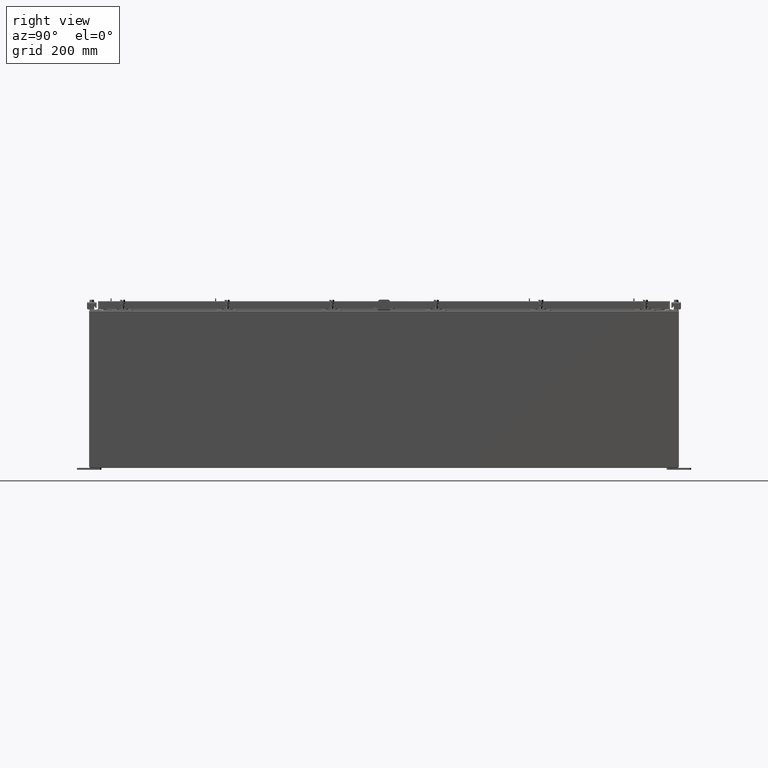
[diagram: clean part render]
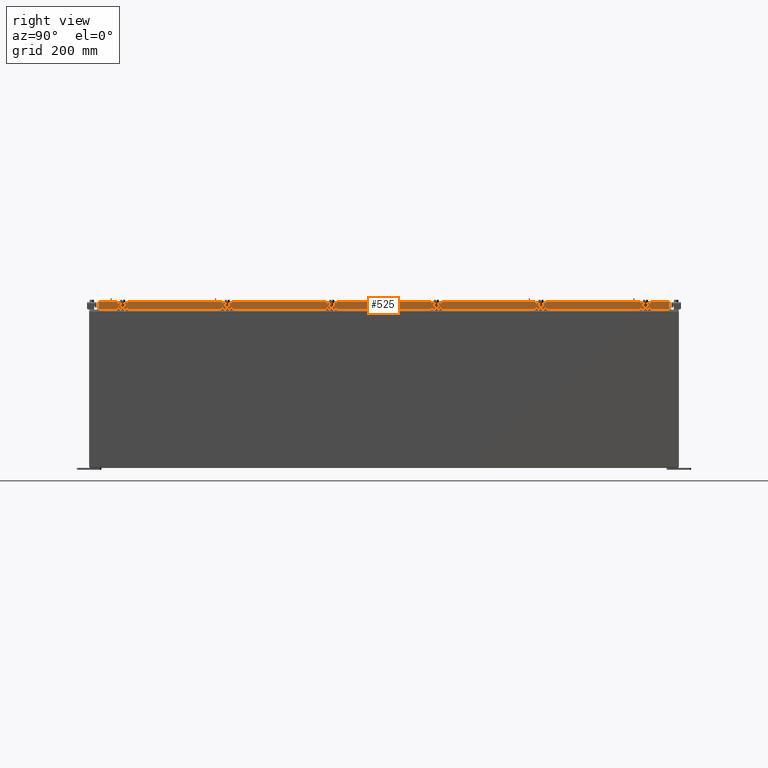
[diagram: same view with one face highlighted and labeled with its STEP entity id]
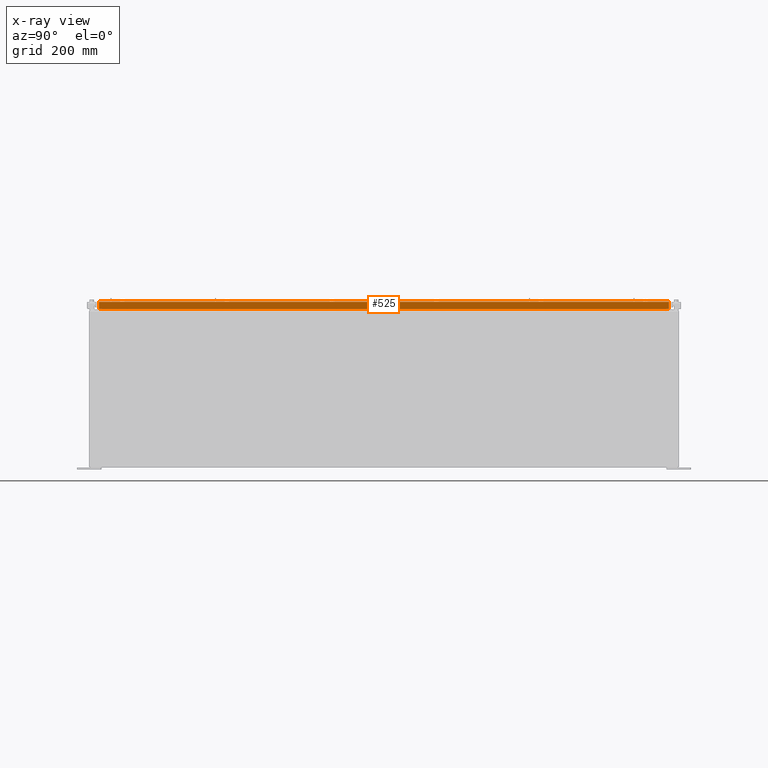
[diagram: x-ray of the same camera — body ghosted, the highlighted face saturated]
A machine part, right view. The second image highlights one B-rep face of the part: STEP entity #525.
The next image is the same camera in x-ray: the body ghosted, the highlighted face saturated — about 0% of this face is hidden behind the body in this view.
In plain terms, the highlighted planar face has unit normal (1, 0, 0).
Its self-contained STEP definition (entity closure, byte-faithful):
#495 = CARTESIAN_POINT ( 'NONE',  ( 17.07800000000000700, 29.00515786437627200, -0.8499999999999996400 ) ) ;
#525 = ADVANCED_FACE ( 'NONE', ( #14808 ), #6521, .T. ) ;
#589 = CARTESIAN_POINT ( 'NONE',  ( 17.07800000000000300, 0.0000000000000000000, -0.08770000000000007000 ) ) ;
#693 = LINE ( 'NONE', #14631, #5012 ) ;
#1278 = VECTOR ( 'NONE', #24574, 39.37007874015748100 ) ;
#3966 = CARTESIAN_POINT ( 'NONE',  ( 17.07800000000000300, -29.00515786437627200, -0.08770000000000007000 ) ) ;
#4329 = EDGE_CURVE ( 'NONE', #9694, #26082, #13972, .T. ) ;
#4550 = EDGE_CURVE ( 'NONE', #13369, #9694, #24896, .T. ) ;
#4651 = CARTESIAN_POINT ( 'NONE',  ( 17.07800000000000300, 29.00515786437626500, -0.08770000000000007000 ) ) ;
#4770 = CARTESIAN_POINT ( 'NONE',  ( 17.07800000000000700, -29.00515786437626500, -0.8499999999999996400 ) ) ;
#5012 = VECTOR ( 'NONE', #27350, 39.37007874015748100 ) ;
#6139 = EDGE_CURVE ( 'NONE', #26082, #25011, #20227, .T. ) ;
#6521 = PLANE ( 'NONE',  #23681 ) ;
#6555 = ORIENTED_EDGE ( 'NONE', *, *, #13916, .T. ) ;
#7369 = EDGE_CURVE ( 'NONE', #8189, #18867, #15759, .T. ) ;
#7421 = CARTESIAN_POINT ( 'NONE',  ( 17.07799999999998500, 28.25515786437626500, -0.8500000000000016400 ) ) ;
#8189 = VERTEX_POINT ( 'NONE', #495 ) ;
#9381 = CARTESIAN_POINT ( 'NONE',  ( 17.07799999999998500, -28.25515786437626500, -0.8500000000000016400 ) ) ;
#9639 = CARTESIAN_POINT ( 'NONE',  ( 17.07800000000000700, -29.09400000000000500, -0.8499999999999996400 ) ) ;
#9694 = VERTEX_POINT ( 'NONE', #9381 ) ;
#9799 = EDGE_CURVE ( 'NONE', #8189, #13369, #693, .T. ) ;
#9968 = ORIENTED_EDGE ( 'NONE', *, *, #4329, .F. ) ;
#10810 = DIRECTION ( 'NONE',  ( 2.818880942772360100E-015, 0.0000000000000000000, -1.000000000000000000 ) ) ;
#11140 = DIRECTION ( 'NONE',  ( -2.818880942772360100E-015, -6.982962677686265900E-015, 1.000000000000000000 ) ) ;
#11241 = DIRECTION ( 'NONE',  ( 0.0000000000000000000, -1.000000000000000000, 0.0000000000000000000 ) ) ;
#12567 = DIRECTION ( 'NONE',  ( -2.818880942772360100E-015, -6.982962677686265900E-015, 1.000000000000000000 ) ) ;
#13281 = CARTESIAN_POINT ( 'NONE',  ( 17.07800000000000300, -29.00515786437627200, -0.07469999999999978000 ) ) ;
#13369 = VERTEX_POINT ( 'NONE', #7421 ) ;
#13517 = LINE ( 'NONE', #589, #19154 ) ;
#13916 = EDGE_CURVE ( 'NONE', #18867, #25011, #13517, .T. ) ;
#13972 = LINE ( 'NONE', #9639, #1278 ) ;
#14631 = CARTESIAN_POINT ( 'NONE',  ( 17.07800000000000700, -29.09400000000000500, -0.8499999999999996400 ) ) ;
#14808 = FACE_OUTER_BOUND ( 'NONE', #21024, .T. ) ;
#14992 = CARTESIAN_POINT ( 'NONE',  ( 17.07800000000000300, 0.0000000000000000000, 4.840166239667796000E-014 ) ) ;
#15696 = ORIENTED_EDGE ( 'NONE', *, *, #6139, .F. ) ;
#15759 = LINE ( 'NONE', #16815, #20751 ) ;
#16672 = CARTESIAN_POINT ( 'NONE',  ( 17.07799999999998500, 28.25515786437626500, -0.8500000000000016400 ) ) ;
#16815 = CARTESIAN_POINT ( 'NONE',  ( 17.07800000000000300, 29.00515786437626500, 2.509435972240157400E-013 ) ) ;
#17304 = ORIENTED_EDGE ( 'NONE', *, *, #7369, .T. ) ;
#18867 = VERTEX_POINT ( 'NONE', #4651 ) ;
#19154 = VECTOR ( 'NONE', #11241, 39.37007874015748100 ) ;
#20227 = LINE ( 'NONE', #13281, #25204 ) ;
#20700 = ORIENTED_EDGE ( 'NONE', *, *, #4550, .F. ) ;
#20751 = VECTOR ( 'NONE', #12567, 39.37007874015748100 ) ;
#21024 = EDGE_LOOP ( 'NONE', ( #15696, #9968, #20700, #22788, #17304, #6555 ) ) ;
#21395 = DIRECTION ( 'NONE',  ( 1.000000000000000000, 0.0000000000000000000, 2.818880942772360100E-015 ) ) ;
#22788 = ORIENTED_EDGE ( 'NONE', *, *, #9799, .F. ) ;
#22970 = DIRECTION ( 'NONE',  ( 0.0000000000000000000, -1.000000000000000000, 0.0000000000000000000 ) ) ;
#23681 = AXIS2_PLACEMENT_3D ( 'NONE', #14992, #21395, #10810 ) ;
#24245 = VECTOR ( 'NONE', #22970, 39.37007874015748100 ) ;
#24574 = DIRECTION ( 'NONE',  ( 0.0000000000000000000, -1.000000000000000000, 0.0000000000000000000 ) ) ;
#24896 = LINE ( 'NONE', #16672, #24245 ) ;
#25011 = VERTEX_POINT ( 'NONE', #3966 ) ;
#25204 = VECTOR ( 'NONE', #11140, 39.37007874015748100 ) ;
#26082 = VERTEX_POINT ( 'NONE', #4770 ) ;
#27350 = DIRECTION ( 'NONE',  ( 0.0000000000000000000, -1.000000000000000000, 0.0000000000000000000 ) ) ;